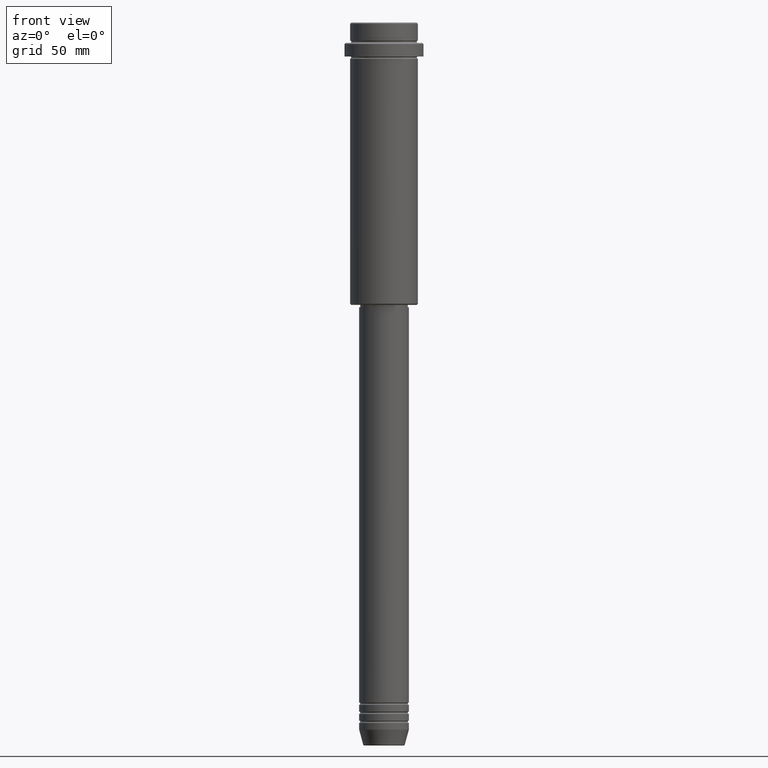
[diagram: clean part render]
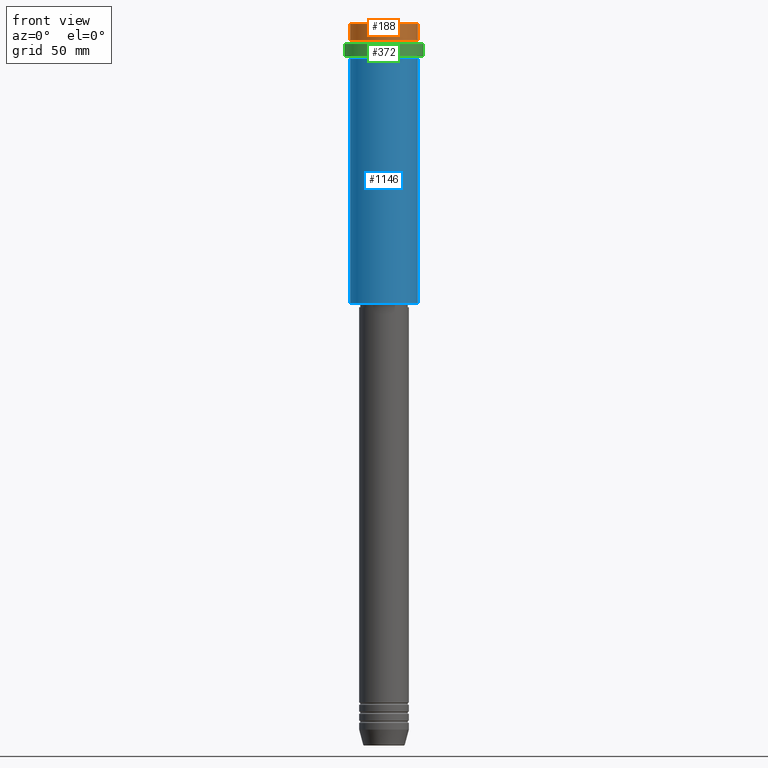
[diagram: same view with three faces highlighted in distinct colors, each labeled with its STEP entity id]
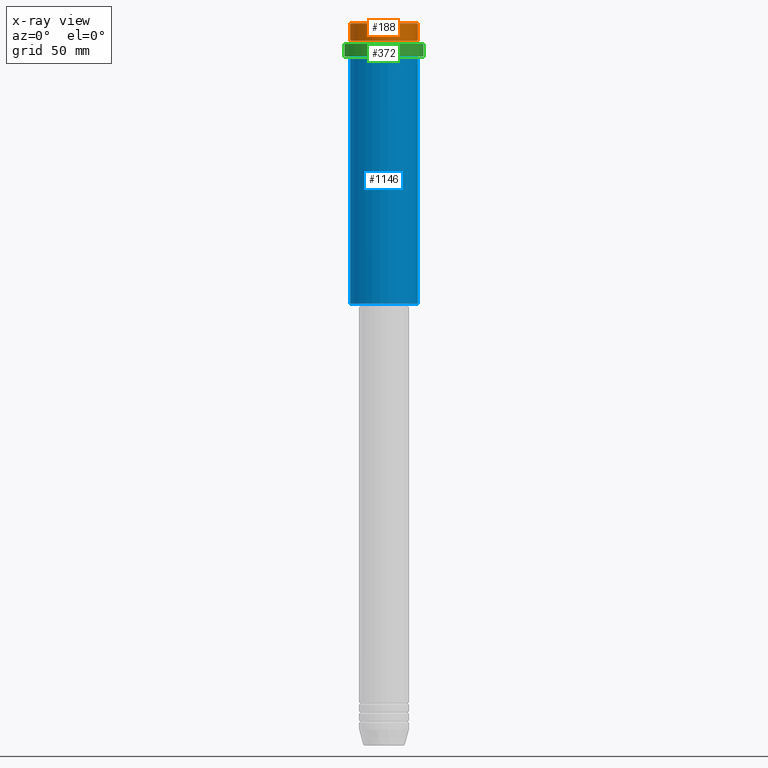
[diagram: x-ray of the same camera — body ghosted, the three highlighted faces saturated]
A machine part, front view with three faces highlighted in distinct colors.
The next image is the same camera in x-ray (body ghosted, the three faces saturated) — at least one of them is partly hidden behind the body in this view.
Their STEP definitions:

[orange] entity #188 — the highlighted cylindrical surface (edge-blend (fillet) strip) has radius 15 mm, axis along (-0, -0, 1).
#29 = LINE ( 'NONE', #475, #223 ) ;
#37 = CIRCLE ( 'NONE', #934, 15.00000000000000000 ) ;
#61 = DIRECTION ( 'NONE',  ( 1.000000000000000000, 0.000000000000000000, 0.000000000000000000 ) ) ;
#84 = EDGE_CURVE ( 'NONE', #1393, #724, #37, .T. ) ;
#158 = LINE ( 'NONE', #374, #804 ) ;
#162 = EDGE_CURVE ( 'NONE', #1020, #724, #158, .T. ) ;
#188 = ADVANCED_FACE ( 'NONE', ( #726 ), #708, .T. ) ;
#223 = VECTOR ( 'NONE', #1131, 1000.000000000000000 ) ;
#374 = CARTESIAN_POINT ( 'NONE',  ( -15.00000000000000000, 1.836970198721029589E-15, 0.000000000000000000 ) ) ;
#391 = ORIENTED_EDGE ( 'NONE', *, *, #1179, .T. ) ;
#441 = CARTESIAN_POINT ( 'NONE',  ( 0.000000000000000000, 0.000000000000000000, -0.4999999999999553690 ) ) ;
#454 = CIRCLE ( 'NONE', #1193, 15.00000000000000000 ) ;
#463 = ORIENTED_EDGE ( 'NONE', *, *, #162, .F. ) ;
#475 = CARTESIAN_POINT ( 'NONE',  ( 15.00000000000000000, 0.000000000000000000, 0.000000000000000000 ) ) ;
#513 = VERTEX_POINT ( 'NONE', #995 ) ;
#515 = DIRECTION ( 'NONE',  ( -0.000000000000000000, -0.000000000000000000, 1.000000000000000000 ) ) ;
#582 = EDGE_CURVE ( 'NONE', #513, #1393, #29, .T. ) ;
#619 = CARTESIAN_POINT ( 'NONE',  ( 0.000000000000000000, 0.000000000000000000, 0.000000000000000000 ) ) ;
#643 = CARTESIAN_POINT ( 'NONE',  ( 0.000000000000000000, 0.000000000000000000, -7.999999999999998224 ) ) ;
#708 = CYLINDRICAL_SURFACE ( 'NONE', #1275, 15.00000000000000000 ) ;
#724 = VERTEX_POINT ( 'NONE', #766 ) ;
#726 = FACE_OUTER_BOUND ( 'NONE', #1383, .T. ) ;
#730 = DIRECTION ( 'NONE',  ( 1.000000000000000000, 0.000000000000000000, 0.000000000000000000 ) ) ;
#766 = CARTESIAN_POINT ( 'NONE',  ( -15.00000000000000000, 1.836970198721029589E-15, -0.4999999999999553690 ) ) ;
#804 = VECTOR ( 'NONE', #940, 1000.000000000000000 ) ;
#824 = DIRECTION ( 'NONE',  ( -0.000000000000000000, -0.000000000000000000, 1.000000000000000000 ) ) ;
#934 = AXIS2_PLACEMENT_3D ( 'NONE', #441, #1338, #996 ) ;
#935 = CARTESIAN_POINT ( 'NONE',  ( -15.00000000000000000, 1.836970198721029589E-15, -7.999999999999998224 ) ) ;
#940 = DIRECTION ( 'NONE',  ( -0.000000000000000000, -0.000000000000000000, 1.000000000000000000 ) ) ;
#995 = CARTESIAN_POINT ( 'NONE',  ( 15.00000000000000000, 0.000000000000000000, -7.999999999999998224 ) ) ;
#996 = DIRECTION ( 'NONE',  ( 1.000000000000000000, 0.000000000000000000, 0.000000000000000000 ) ) ;
#1020 = VERTEX_POINT ( 'NONE', #935 ) ;
#1131 = DIRECTION ( 'NONE',  ( -0.000000000000000000, -0.000000000000000000, 1.000000000000000000 ) ) ;
#1179 = EDGE_CURVE ( 'NONE', #1020, #513, #454, .T. ) ;
#1193 = AXIS2_PLACEMENT_3D ( 'NONE', #643, #515, #730 ) ;
#1263 = ORIENTED_EDGE ( 'NONE', *, *, #582, .T. ) ;
#1275 = AXIS2_PLACEMENT_3D ( 'NONE', #619, #824, #61 ) ;
#1316 = CARTESIAN_POINT ( 'NONE',  ( 15.00000000000000000, 0.000000000000000000, -0.4999999999999553690 ) ) ;
#1338 = DIRECTION ( 'NONE',  ( 0.000000000000000000, 0.000000000000000000, -1.000000000000000000 ) ) ;
#1356 = ORIENTED_EDGE ( 'NONE', *, *, #84, .T. ) ;
#1383 = EDGE_LOOP ( 'NONE', ( #463, #391, #1263, #1356 ) ) ;
#1393 = VERTEX_POINT ( 'NONE', #1316 ) ;

[blue] entity #1146 — the highlighted cylindrical surface (edge-blend (fillet) strip) has radius 15 mm, axis along (-0, -0, 1).
#1 = CARTESIAN_POINT ( 'NONE',  ( 0.000000000000000000, 0.000000000000000000, -16.00000000000000000 ) ) ;
#6 = ORIENTED_EDGE ( 'NONE', *, *, #270, .T. ) ;
#48 = CARTESIAN_POINT ( 'NONE',  ( 15.00000000000000000, 0.000000000000000000, 0.000000000000000000 ) ) ;
#270 = EDGE_CURVE ( 'NONE', #611, #1111, #714, .T. ) ;
#341 = ORIENTED_EDGE ( 'NONE', *, *, #1241, .F. ) ;
#365 = CARTESIAN_POINT ( 'NONE',  ( 15.00000000000000000, 0.000000000000000000, -124.4999999999998863 ) ) ;
#397 = FACE_OUTER_BOUND ( 'NONE', #1230, .T. ) ;
#439 = VERTEX_POINT ( 'NONE', #638 ) ;
#479 = CIRCLE ( 'NONE', #1343, 15.00000000000000178 ) ;
#483 = DIRECTION ( 'NONE',  ( -0.000000000000000000, -0.000000000000000000, 1.000000000000000000 ) ) ;
#524 = CARTESIAN_POINT ( 'NONE',  ( 0.000000000000000000, 0.000000000000000000, -124.4999999999998863 ) ) ;
#597 = DIRECTION ( 'NONE',  ( 1.000000000000000000, 0.000000000000000000, 0.000000000000000000 ) ) ;
#611 = VERTEX_POINT ( 'NONE', #365 ) ;
#623 = DIRECTION ( 'NONE',  ( 1.000000000000000000, 0.000000000000000000, 0.000000000000000000 ) ) ;
#638 = CARTESIAN_POINT ( 'NONE',  ( -15.00000000000000355, 1.836970198721029983E-15, -16.00000000000000000 ) ) ;
#666 = ORIENTED_EDGE ( 'NONE', *, *, #821, .T. ) ;
#714 = LINE ( 'NONE', #48, #827 ) ;
#725 = CARTESIAN_POINT ( 'NONE',  ( 15.00000000000000178, 0.000000000000000000, -16.00000000000000000 ) ) ;
#821 = EDGE_CURVE ( 'NONE', #943, #611, #1256, .T. ) ;
#827 = VECTOR ( 'NONE', #483, 1000.000000000000000 ) ;
#859 = CARTESIAN_POINT ( 'NONE',  ( -15.00000000000000000, 1.836970198721029589E-15, 0.000000000000000000 ) ) ;
#864 = DIRECTION ( 'NONE',  ( -0.000000000000000000, -0.000000000000000000, 1.000000000000000000 ) ) ;
#902 = CARTESIAN_POINT ( 'NONE',  ( -15.00000000000000000, 1.836970198721029589E-15, -124.4999999999998863 ) ) ;
#943 = VERTEX_POINT ( 'NONE', #902 ) ;
#961 = DIRECTION ( 'NONE',  ( -0.000000000000000000, -0.000000000000000000, 1.000000000000000000 ) ) ;
#1004 = AXIS2_PLACEMENT_3D ( 'NONE', #1285, #864, #623 ) ;
#1111 = VERTEX_POINT ( 'NONE', #725 ) ;
#1146 = ADVANCED_FACE ( 'NONE', ( #397 ), #1395, .T. ) ;
#1203 = DIRECTION ( 'NONE',  ( -0.000000000000000000, -0.000000000000000000, 1.000000000000000000 ) ) ;
#1230 = EDGE_LOOP ( 'NONE', ( #341, #666, #6, #1284 ) ) ;
#1241 = EDGE_CURVE ( 'NONE', #943, #439, #1400, .T. ) ;
#1256 = CIRCLE ( 'NONE', #1278, 15.00000000000000000 ) ;
#1278 = AXIS2_PLACEMENT_3D ( 'NONE', #524, #961, #1387 ) ;
#1284 = ORIENTED_EDGE ( 'NONE', *, *, #1304, .F. ) ;
#1285 = CARTESIAN_POINT ( 'NONE',  ( 0.000000000000000000, 0.000000000000000000, 0.000000000000000000 ) ) ;
#1302 = VECTOR ( 'NONE', #1372, 1000.000000000000000 ) ;
#1304 = EDGE_CURVE ( 'NONE', #439, #1111, #479, .T. ) ;
#1343 = AXIS2_PLACEMENT_3D ( 'NONE', #1, #1203, #597 ) ;
#1372 = DIRECTION ( 'NONE',  ( -0.000000000000000000, -0.000000000000000000, 1.000000000000000000 ) ) ;
#1387 = DIRECTION ( 'NONE',  ( -1.000000000000000000, 0.000000000000000000, 0.000000000000000000 ) ) ;
#1395 = CYLINDRICAL_SURFACE ( 'NONE', #1004, 15.00000000000000000 ) ;
#1400 = LINE ( 'NONE', #859, #1302 ) ;

[green] entity #372 — the highlighted cylindrical surface (partial cylindrical patch) has radius 17.5 mm, axis along (-0, -0, 1).
#99 = DIRECTION ( 'NONE',  ( -0.000000000000000000, -0.000000000000000000, 1.000000000000000000 ) ) ;
#102 = CARTESIAN_POINT ( 'NONE',  ( 0.000000000000000000, 0.000000000000000000, 0.000000000000000000 ) ) ;
#132 = LINE ( 'NONE', #903, #407 ) ;
#134 = ORIENTED_EDGE ( 'NONE', *, *, #503, .T. ) ;
#150 = CIRCLE ( 'NONE', #965, 17.50000000000000000 ) ;
#168 = EDGE_CURVE ( 'NONE', #647, #1406, #932, .T. ) ;
#251 = DIRECTION ( 'NONE',  ( -0.000000000000000000, -0.000000000000000000, 1.000000000000000000 ) ) ;
#264 = VERTEX_POINT ( 'NONE', #1260 ) ;
#298 = CARTESIAN_POINT ( 'NONE',  ( 0.000000000000000000, 0.000000000000000000, -15.00000000000000178 ) ) ;
#372 = ADVANCED_FACE ( 'NONE', ( #1295 ), #1170, .T. ) ;
#393 = CARTESIAN_POINT ( 'NONE',  ( -17.50000000000000000, 2.143131898507868248E-15, -9.500000000000028422 ) ) ;
#407 = VECTOR ( 'NONE', #702, 1000.000000000000000 ) ;
#469 = DIRECTION ( 'NONE',  ( 0.000000000000000000, 0.000000000000000000, -1.000000000000000000 ) ) ;
#493 = ORIENTED_EDGE ( 'NONE', *, *, #168, .F. ) ;
#503 = EDGE_CURVE ( 'NONE', #1113, #264, #132, .T. ) ;
#552 = DIRECTION ( 'NONE',  ( 1.000000000000000000, 0.000000000000000000, 0.000000000000000000 ) ) ;
#578 = AXIS2_PLACEMENT_3D ( 'NONE', #102, #846, #552 ) ;
#603 = EDGE_CURVE ( 'NONE', #264, #1406, #983, .T. ) ;
#647 = VERTEX_POINT ( 'NONE', #1351 ) ;
#702 = DIRECTION ( 'NONE',  ( -0.000000000000000000, -0.000000000000000000, 1.000000000000000000 ) ) ;
#715 = CARTESIAN_POINT ( 'NONE',  ( 17.50000000000000000, 0.000000000000000000, -15.00000000000000178 ) ) ;
#782 = VECTOR ( 'NONE', #251, 1000.000000000000000 ) ;
#805 = ORIENTED_EDGE ( 'NONE', *, *, #603, .T. ) ;
#837 = EDGE_CURVE ( 'NONE', #647, #1113, #150, .T. ) ;
#846 = DIRECTION ( 'NONE',  ( -0.000000000000000000, -0.000000000000000000, 1.000000000000000000 ) ) ;
#888 = DIRECTION ( 'NONE',  ( 1.000000000000000000, 0.000000000000000000, 0.000000000000000000 ) ) ;
#903 = CARTESIAN_POINT ( 'NONE',  ( 17.50000000000000000, 0.000000000000000000, 0.000000000000000000 ) ) ;
#932 = LINE ( 'NONE', #1237, #782 ) ;
#933 = EDGE_LOOP ( 'NONE', ( #493, #1109, #134, #805 ) ) ;
#965 = AXIS2_PLACEMENT_3D ( 'NONE', #298, #99, #888 ) ;
#983 = CIRCLE ( 'NONE', #1232, 17.50000000000000000 ) ;
#1109 = ORIENTED_EDGE ( 'NONE', *, *, #837, .T. ) ;
#1113 = VERTEX_POINT ( 'NONE', #715 ) ;
#1136 = DIRECTION ( 'NONE',  ( 1.000000000000000000, 0.000000000000000000, 0.000000000000000000 ) ) ;
#1170 = CYLINDRICAL_SURFACE ( 'NONE', #578, 17.50000000000000000 ) ;
#1232 = AXIS2_PLACEMENT_3D ( 'NONE', #1346, #469, #1136 ) ;
#1237 = CARTESIAN_POINT ( 'NONE',  ( -17.50000000000000000, 2.143131898507868248E-15, 0.000000000000000000 ) ) ;
#1260 = CARTESIAN_POINT ( 'NONE',  ( 17.50000000000000000, 0.000000000000000000, -9.500000000000028422 ) ) ;
#1295 = FACE_OUTER_BOUND ( 'NONE', #933, .T. ) ;
#1346 = CARTESIAN_POINT ( 'NONE',  ( 0.000000000000000000, 0.000000000000000000, -9.500000000000028422 ) ) ;
#1351 = CARTESIAN_POINT ( 'NONE',  ( -17.50000000000000000, 2.143131898507868248E-15, -15.00000000000000178 ) ) ;
#1406 = VERTEX_POINT ( 'NONE', #393 ) ;